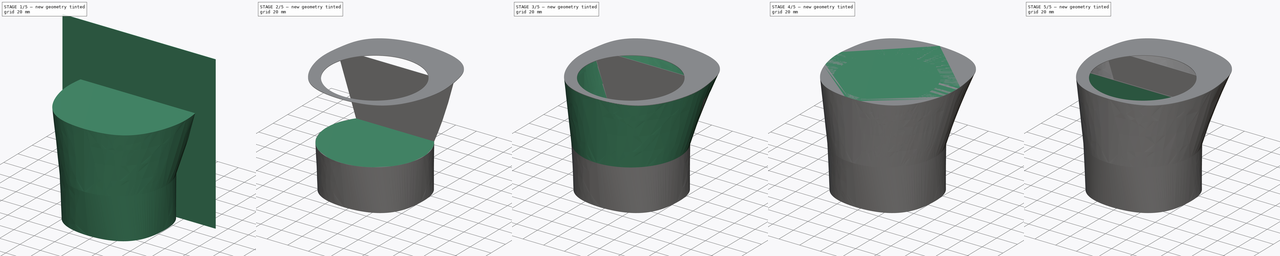
[diagram: build sequence overview — one tinted view per stage of 5, left to right]
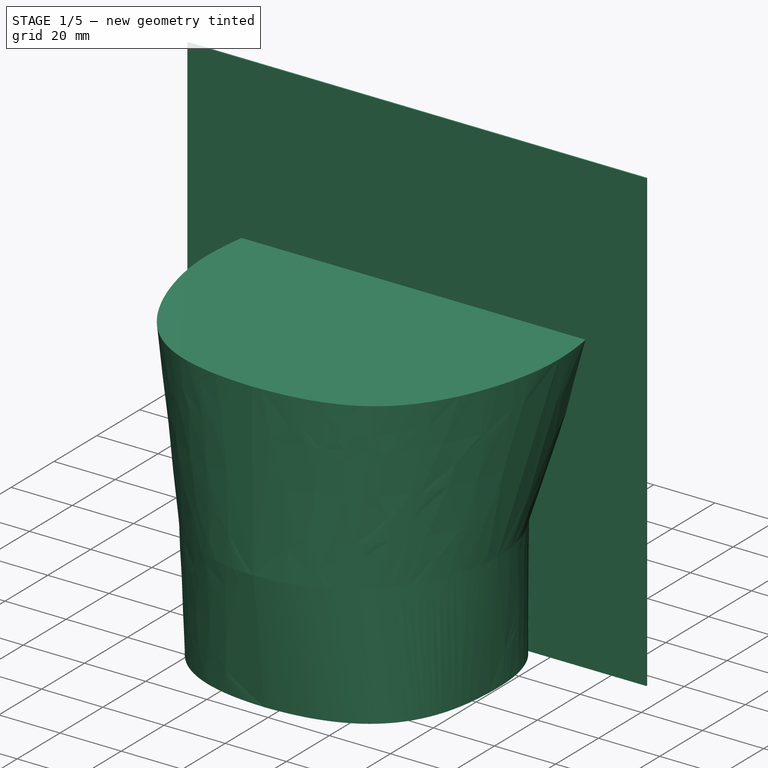
[diagram: stage 1 of 5 — iso view after this stage's code; geometry added in this stage tinted green]
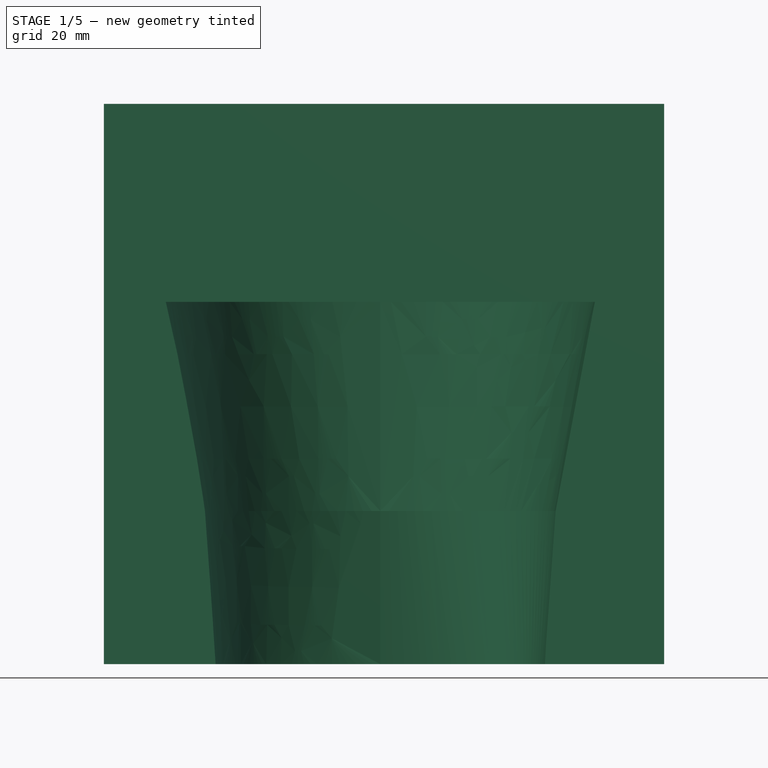
[diagram: stage 1 of 5 — front view after this stage's code; geometry added in this stage tinted green]
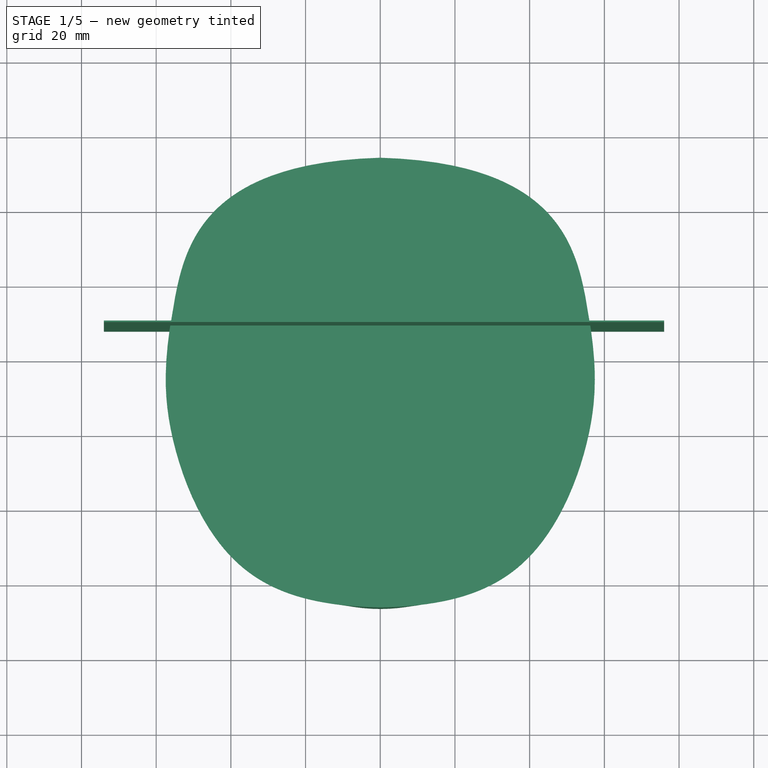
[diagram: stage 1 of 5 — top view after this stage's code; geometry added in this stage tinted green]
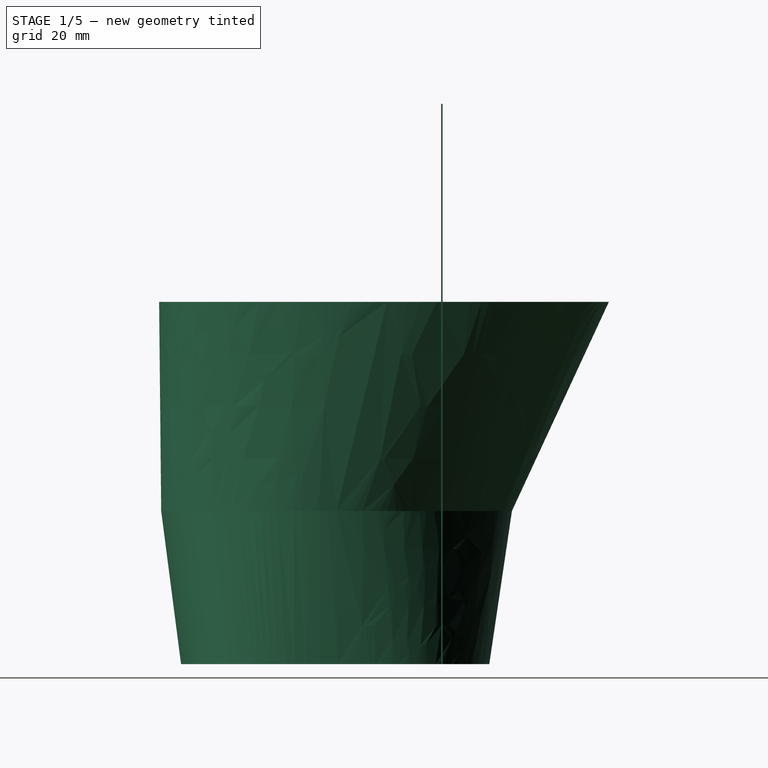
[diagram: stage 1 of 5 — right view after this stage's code; geometry added in this stage tinted green]
FCSTD DOCUMENT  (FreeCAD 0.21R33668 +26 (Git))
Label: nose_finished
License: All rights reserved
LicenseURL: http://en.wikipedia.org/wiki/All_rights_reserved
objects: Sketcher::SketchObject×14, PartDesign::AdditiveLoft×6, Part::MultiFuse×6, Image::ImagePlane×3, PartDesign::Body×3, PartDesign::Thickness×2, Part::Box×2, Part::MultiCommon×2, PartDesign::Pad×1, PartDesign::Pocket×1
note: 47 computed .brp shape members not serialized (recipe doc carries the construction recipe); baked Part::Feature solids carry a one-line shape summary decoded from their .brp

FEATURE [Sketcher::SketchObject] Sketch008
  FullyConstrained = false
  MapMode = 5
  Support = -> [XY_Plane003]
  sketch-geometry (10):
    g0-g4: Circle x5 (B-spline internal-alignment scaffolding for g5; pole/knot coordinates omitted)
    g5: BSplineCurve PolesCount=5 KnotsCount=3 Degree=3 IsPeriodic=0
    g6: GeomPoint X=0 Y=40.8923 Z=0
    g7: GeomPoint X=43.9691 Y=-0.234824 Z=0
    g8: GeomPoint X=0 Y=-41.641 Z=0
    g9: BSplineCurve PolesCount=5 KnotsCount=3 Degree=3 IsPeriodic=0
  constraints (12):
    c: Weight(g0) = 1
    c: PointOnObject(g5,g-2)
    c: Equal(g0,g1)
    c: Equal(g0,g2)
    c: PointOnObject(g2,g-1)
    c: Equal(g0,g3)
    c: Equal(g0,g4)
    c: PointOnObject(g5,g-2)
    c: InternalAlignment(g0-g4 -> g5) x5
    c: InternalAlignment(g6,g5)
    c: InternalAlignment(g7,g5)
    c: InternalAlignment(g8,g5)
FEATURE [Sketcher::SketchObject] Sketch009
  AttachmentOffset = pos=(0,0,41) rot=(0,0,1;0rad)
  FullyConstrained = false
  MapMode = 5
  Placement = pos=(0,0,41) rot=(0,0,1;0rad)
  Support = -> [XY_Plane003]
  sketch-geometry (1):
    g0: Circle CenterX=0 CenterY=0 CenterZ=0 NormalX=0 NormalY=0 NormalZ=1 AngleXU=0 Radius=46.9575
  constraints (1):
    c: Coincident(g0,g-1)
FEATURE [PartDesign::AdditiveLoft] AdditiveLoft003
  Closed = false
  Profile = -> Sketch009
  Ruled = false
  Sections = -> [Sketch008]
FEATURE [Sketcher::SketchObject] Sketch010
  AttachmentOffset = pos=(0,0,41) rot=(0,0,1;0rad)
  FullyConstrained = false
  MapMode = 5
  Placement = pos=(0,0,41) rot=(0,0,1;0rad)
  Support = -> [XY_Plane004]
  sketch-geometry (1):
    g0: Circle CenterX=0 CenterY=0 CenterZ=0 NormalX=0 NormalY=0 NormalZ=1 AngleXU=0 Radius=46.9575
  constraints (1):
    c: Coincident(g0,g-1)
FEATURE [Sketcher::SketchObject] Sketch011
  AttachmentOffset = pos=(0,0,97) rot=(0,0,1;0rad)
  FullyConstrained = false
  MapMode = 5
  Placement = pos=(0,0,97) rot=(0,0,1;0rad)
  Support = -> [XY_Plane004]
  sketch-geometry (14):
    g0-g6: Circle x7 (B-spline internal-alignment scaffolding for g7; pole/knot coordinates omitted)
    g7: BSplineCurve PolesCount=7 KnotsCount=5 Degree=3 IsPeriodic=0
    g8-g12: GeomPoint x5 (B-spline internal-alignment scaffolding for g7; pole/knot coordinates omitted)
    g13: BSplineCurve PolesCount=7 KnotsCount=5 Degree=3 IsPeriodic=0
  constraints (12):
    c: Weight(g0) = 1
    c: PointOnObject(g7,g-2)
    c: Equal(g0,g1)
    c: Equal(g0,g2)
    c: Equal(g0,g3)
    c: PointOnObject(g3,g-1)
    c: Equal(g0,g4)
    c: Equal(g0,g5)
    c: Equal(g0,g6)
    c: PointOnObject(g7,g-2)
    c: InternalAlignment(g0-g6 -> g7) x7
    c: InternalAlignment(g8-g12 -> g7) x5
FEATURE [PartDesign::AdditiveLoft] AdditiveLoft002
  Closed = false
  Profile = -> Sketch011
  Ruled = false
  Sections = -> [Sketch010]
FEATURE [Part::MultiFuse] Fusion002
  Shapes = -> [AdditiveLoft002,AdditiveLoft003]
FEATURE [Part::Box] Box  label="Cube"
  AttacherType = Attacher::AttachEngine3D
  Height = 150
  Length = 150
  Placement = pos=(-74,28,0) rot=(0,0,1;0rad)
  Width = 0.4
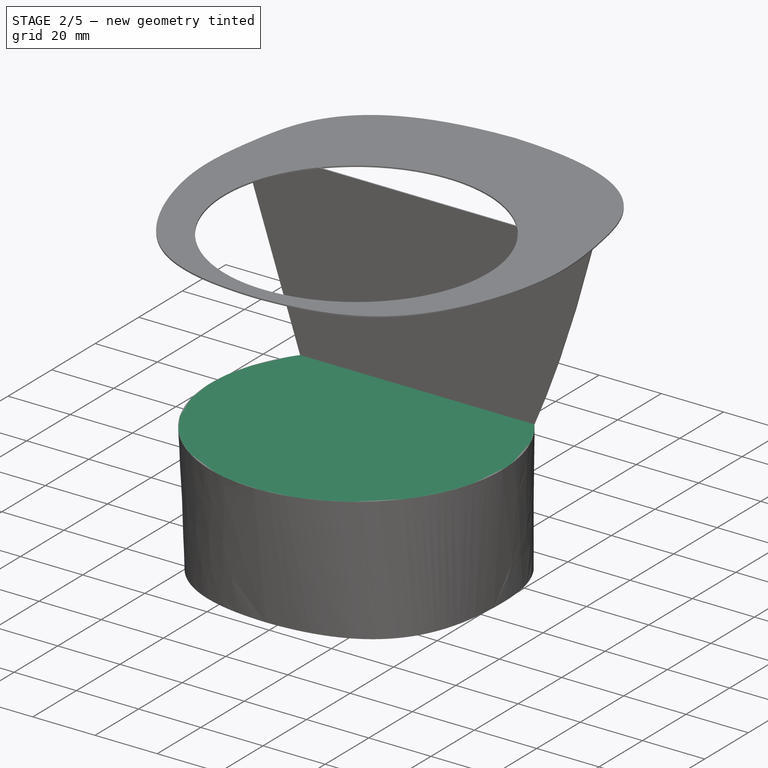
[diagram: stage 2 of 5 — iso view after this stage's code; geometry added in this stage tinted green]
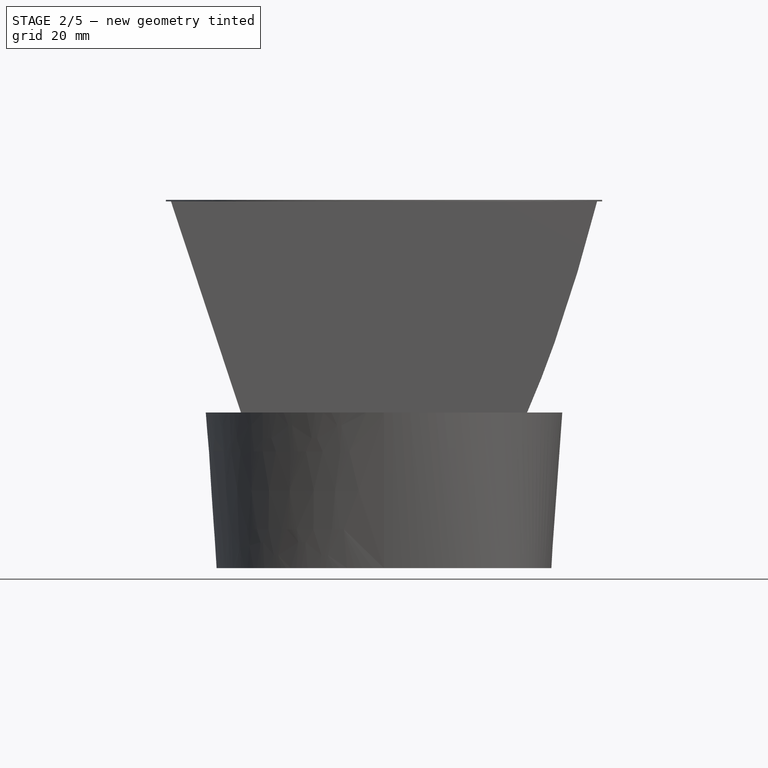
[diagram: stage 2 of 5 — front view after this stage's code; geometry added in this stage tinted green]
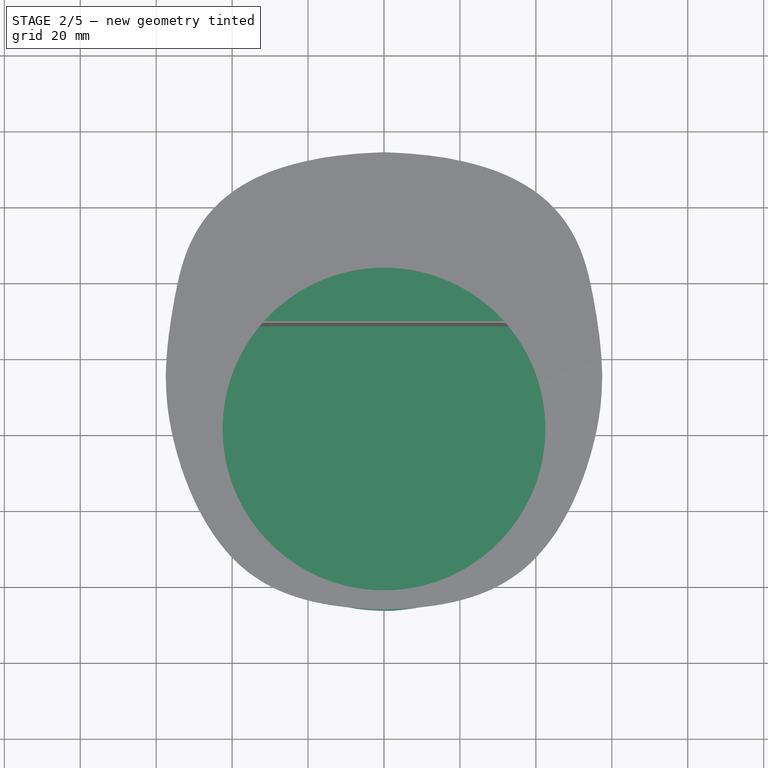
[diagram: stage 2 of 5 — top view after this stage's code; geometry added in this stage tinted green]
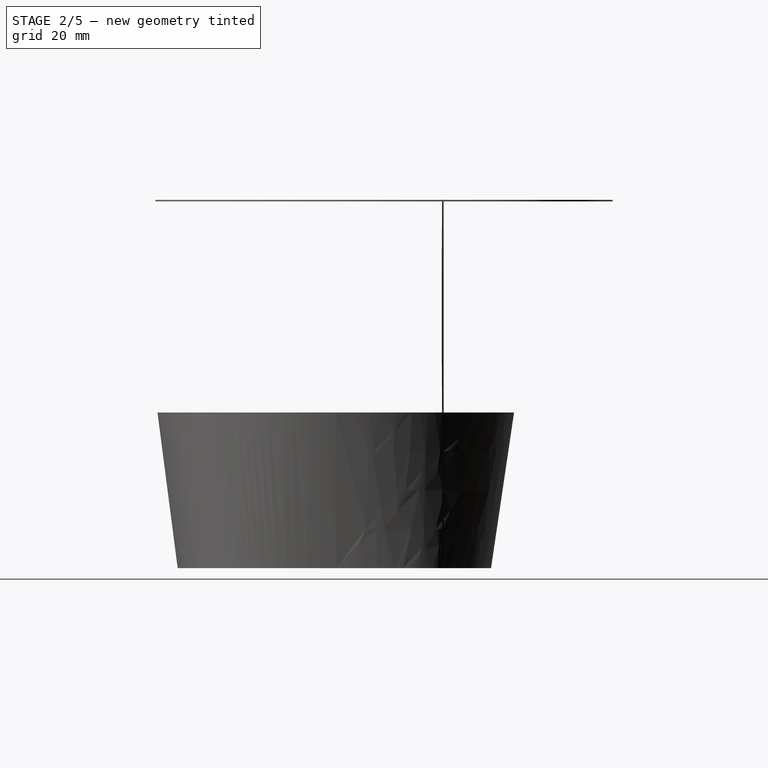
[diagram: stage 2 of 5 — right view after this stage's code; geometry added in this stage tinted green]
FEATURE [PartDesign::Body] Body001
  Group = -> [Sketch004,Sketch005,AdditiveLoft,Thickness]
  Origin = -> Origin001
  Placement = pos=(0,0,-0.18) rot=(0,0,1;0rad)
  Tip = -> Thickness
FEATURE [PartDesign::AdditiveLoft] AdditiveLoft001
  Closed = false
  Profile = -> Sketch001
  Ruled = false
  Sections = -> [Sketch]
FEATURE [Sketcher::SketchObject] Sketch006
  AttachmentOffset = pos=(0,0,97) rot=(0,0,1;0rad)
  FullyConstrained = false
  MapMode = 5
  Placement = pos=(0,0,97) rot=(0,0,1;0rad)
  Support = -> [XY_Plane002]
  sketch-geometry (14):
    g0-g6: Circle x7 (B-spline internal-alignment scaffolding for g7; pole/knot coordinates omitted)
    g7: BSplineCurve PolesCount=7 KnotsCount=5 Degree=3 IsPeriodic=0
    g8-g12: GeomPoint x5 (B-spline internal-alignment scaffolding for g7; pole/knot coordinates omitted)
    g13: BSplineCurve PolesCount=7 KnotsCount=5 Degree=3 IsPeriodic=0
  constraints (12):
    c: Weight(g0) = 1
    c: PointOnObject(g7,g-2)
    c: Equal(g0,g1)
    c: Equal(g0,g2)
    c: Equal(g0,g3)
    c: PointOnObject(g3,g-1)
    c: Equal(g0,g4)
    c: Equal(g0,g5)
    c: Equal(g0,g6)
    c: PointOnObject(g7,g-2)
    c: InternalAlignment(g0-g6 -> g7) x7
    c: InternalAlignment(g8-g12 -> g7) x5
FEATURE [PartDesign::Pad] Pad
  Direction = (0,0,1)
  Length = 0.4
  Length2 = 10
  Profile = -> Sketch006
  ReferenceAxis = -> Sketch006 [N_Axis]
  Reversed = true
  Type = 0
FEATURE [Sketcher::SketchObject] Sketch007
  FullyConstrained = true
  MapMode = 5
  Placement = pos=(0,0,97) rot=(0,0,1;0rad)
  Support = -> [Pad]
  sketch-geometry (1):
    g0: Circle CenterX=0 CenterY=0 CenterZ=0 NormalX=0 NormalY=0 NormalZ=1 AngleXU=0 Radius=42.5
  constraints (2):
    c: Coincident(g0,g-1)
    c: Diameter(g0) = 85
FEATURE [PartDesign::Pocket] Pocket
  BaseFeature = -> Pad
  Direction = (0,0,-1)
  Length = 5
  Length2 = 5
  Profile = -> Sketch007
  ReferenceAxis = -> Sketch007 [N_Axis]
  Type = 0
FEATURE [Part::MultiCommon] Common
  Shapes = -> [Fusion002,Box]
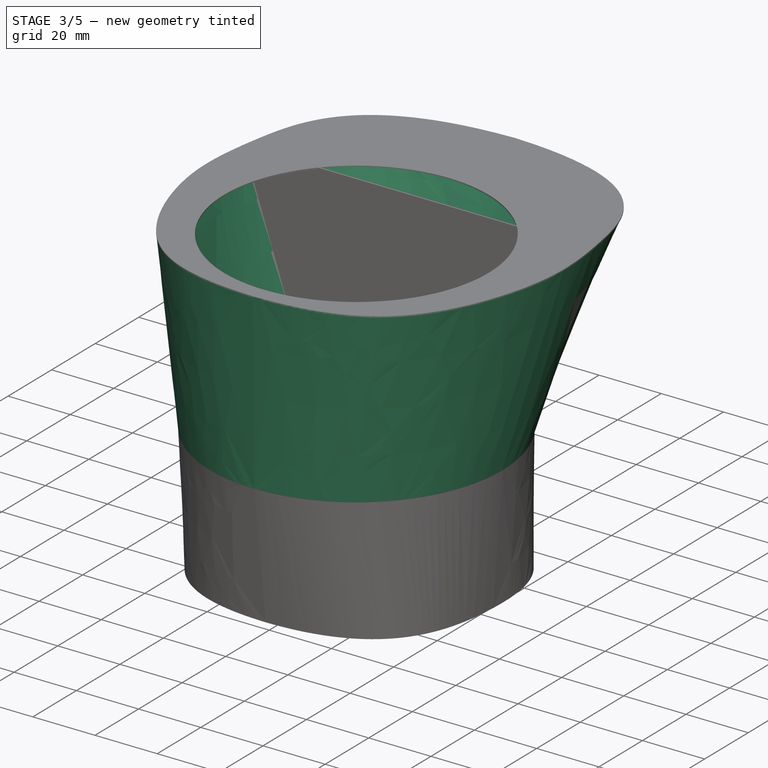
[diagram: stage 3 of 5 — iso view after this stage's code; geometry added in this stage tinted green]
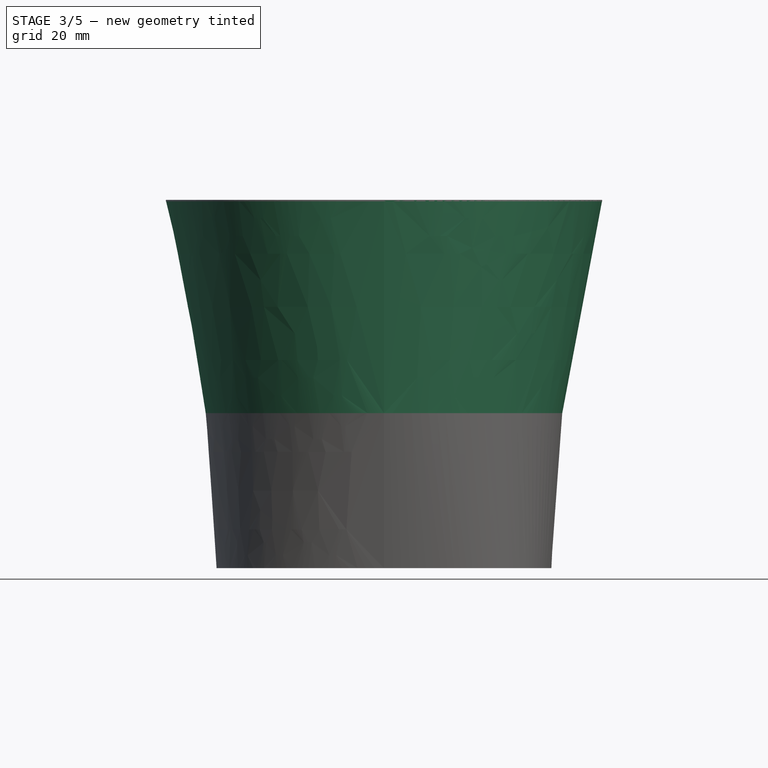
[diagram: stage 3 of 5 — front view after this stage's code; geometry added in this stage tinted green]
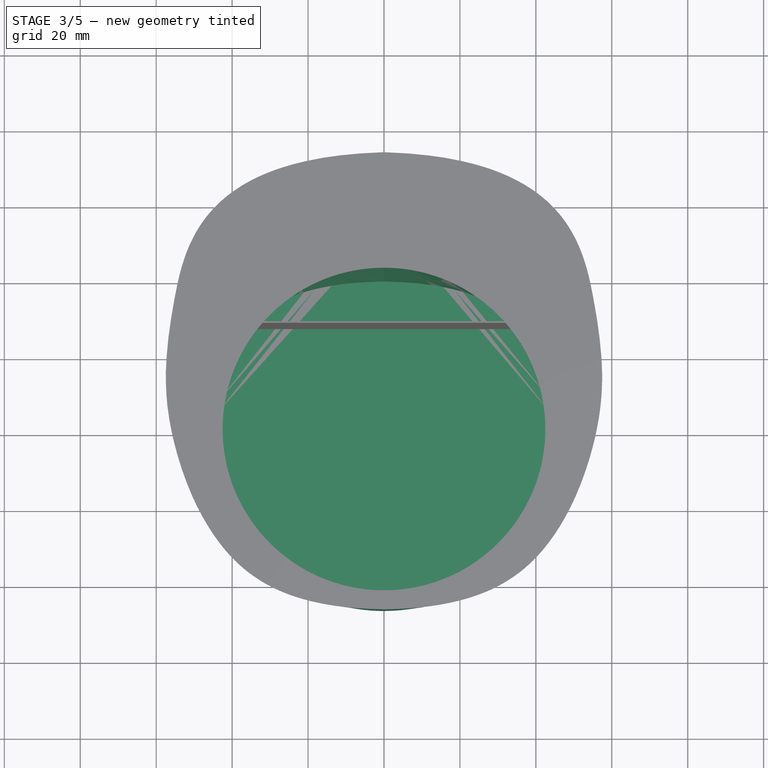
[diagram: stage 3 of 5 — top view after this stage's code; geometry added in this stage tinted green]
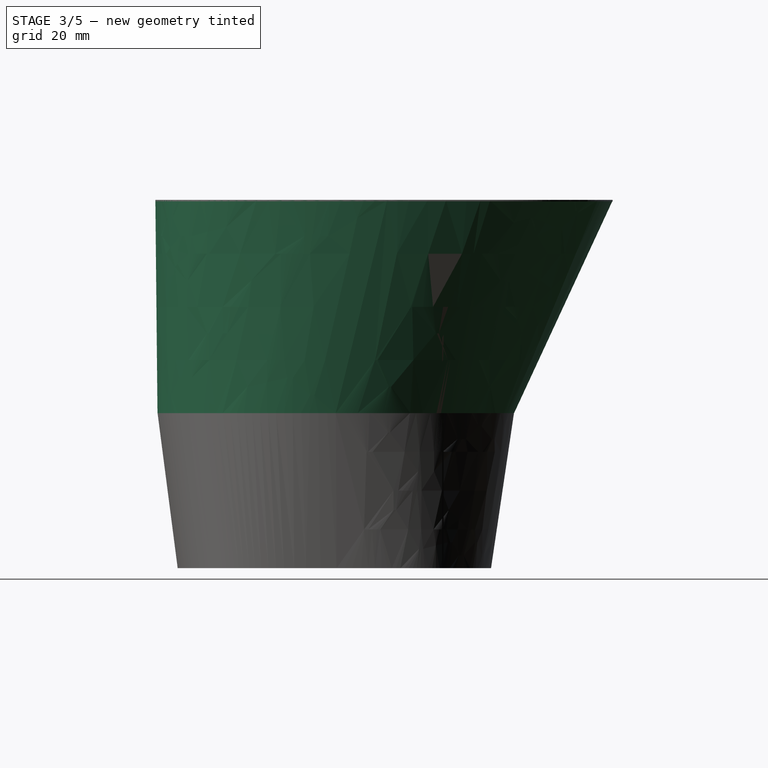
[diagram: stage 3 of 5 — right view after this stage's code; geometry added in this stage tinted green]
FEATURE [Image::ImagePlane] first
  Placement = pos=(7,-6,0) rot=(0,0,1;0rad)
  XSize = 216.67
  YSize = 171.39
FEATURE [Image::ImagePlane] second
  Placement = pos=(2,-13,0) rot=(0,0,1;0rad)
  XSize = 265.847
  YSize = 200.768
FEATURE [Image::ImagePlane] third
  Placement = pos=(-10,-8,0) rot=(0,0,1;0rad)
  XSize = 267.613
  YSize = 218.51
FEATURE [Sketcher::SketchObject] Sketch
  FullyConstrained = false
  MapMode = 5
  Support = -> [XY_Plane]
  sketch-geometry (10):
    g0-g4: Circle x5 (B-spline internal-alignment scaffolding for g5; pole/knot coordinates omitted)
    g5: BSplineCurve PolesCount=5 KnotsCount=3 Degree=3 IsPeriodic=0
    g6: GeomPoint X=0 Y=40.8923 Z=0
    g7: GeomPoint X=43.9691 Y=-0.234824 Z=0
    g8: GeomPoint X=0 Y=-41.641 Z=0
    g9: BSplineCurve PolesCount=5 KnotsCount=3 Degree=3 IsPeriodic=0
  constraints (12):
    c: Weight(g0) = 1
    c: PointOnObject(g5,g-2)
    c: Equal(g0,g1)
    c: Equal(g0,g2)
    c: PointOnObject(g2,g-1)
    c: Equal(g0,g3)
    c: Equal(g0,g4)
    c: PointOnObject(g5,g-2)
    c: InternalAlignment(g0-g4 -> g5) x5
    c: InternalAlignment(g6,g5)
    c: InternalAlignment(g7,g5)
    c: InternalAlignment(g8,g5)
FEATURE [Sketcher::SketchObject] Sketch001
  AttachmentOffset = pos=(0,0,41) rot=(0,0,1;0rad)
  FullyConstrained = false
  MapMode = 5
  Placement = pos=(0,0,41) rot=(0,0,1;0rad)
  Support = -> [XY_Plane]
  sketch-geometry (1):
    g0: Circle CenterX=0 CenterY=0 CenterZ=0 NormalX=0 NormalY=0 NormalZ=1 AngleXU=0 Radius=46.9575
  constraints (1):
    c: Coincident(g0,g-1)
FEATURE [Sketcher::SketchObject] Sketch004
  AttachmentOffset = pos=(0,0,41) rot=(0,0,1;0rad)
  FullyConstrained = false
  MapMode = 5
  Placement = pos=(0,0,41) rot=(0,0,1;0rad)
  Support = -> [XY_Plane001]
  sketch-geometry (1):
    g0: Circle CenterX=0 CenterY=0 CenterZ=0 NormalX=0 NormalY=0 NormalZ=1 AngleXU=0 Radius=46.9575
  constraints (1):
    c: Coincident(g0,g-1)
FEATURE [Sketcher::SketchObject] Sketch005
  AttachmentOffset = pos=(0,0,97) rot=(0,0,1;0rad)
  FullyConstrained = false
  MapMode = 5
  Placement = pos=(0,0,97) rot=(0,0,1;0rad)
  Support = -> [XY_Plane001]
  sketch-geometry (14):
    g0-g6: Circle x7 (B-spline internal-alignment scaffolding for g7; pole/knot coordinates omitted)
    g7: BSplineCurve PolesCount=7 KnotsCount=5 Degree=3 IsPeriodic=0
    g8-g12: GeomPoint x5 (B-spline internal-alignment scaffolding for g7; pole/knot coordinates omitted)
    g13: BSplineCurve PolesCount=7 KnotsCount=5 Degree=3 IsPeriodic=0
  constraints (12):
    c: Weight(g0) = 1
    c: PointOnObject(g7,g-2)
    c: Equal(g0,g1)
    c: Equal(g0,g2)
    c: Equal(g0,g3)
    c: PointOnObject(g3,g-1)
    c: Equal(g0,g4)
    c: Equal(g0,g5)
    c: Equal(g0,g6)
    c: PointOnObject(g7,g-2)
    c: InternalAlignment(g0-g6 -> g7) x7
    c: InternalAlignment(g8-g12 -> g7) x5
FEATURE [PartDesign::AdditiveLoft] AdditiveLoft
  Closed = false
  Profile = -> Sketch005
  Ruled = false
  Sections = -> [Sketch004]
FEATURE [PartDesign::Thickness] Thickness
  Base = -> AdditiveLoft [Face1,Face3]
  BaseFeature = -> AdditiveLoft
  Intersection = false
  Join = 0
  Mode = 0
  Reversed = true
  SupportTransform = false
  Value = 0.4
FEATURE [PartDesign::Thickness] Thickness001
  Base = -> AdditiveLoft001 [Face1]
  BaseFeature = -> AdditiveLoft001
  Intersection = false
  Join = 1
  Mode = 0
  Reversed = true
  SupportTransform = false
  Value = 0.4
FEATURE [PartDesign::Body] Body
  Group = -> [Sketch,Sketch001,AdditiveLoft001,Thickness001]
  Origin = -> Origin
  Tip = -> Thickness001
FEATURE [Part::MultiFuse] Fusion
  Shapes = -> [Body001,Body]
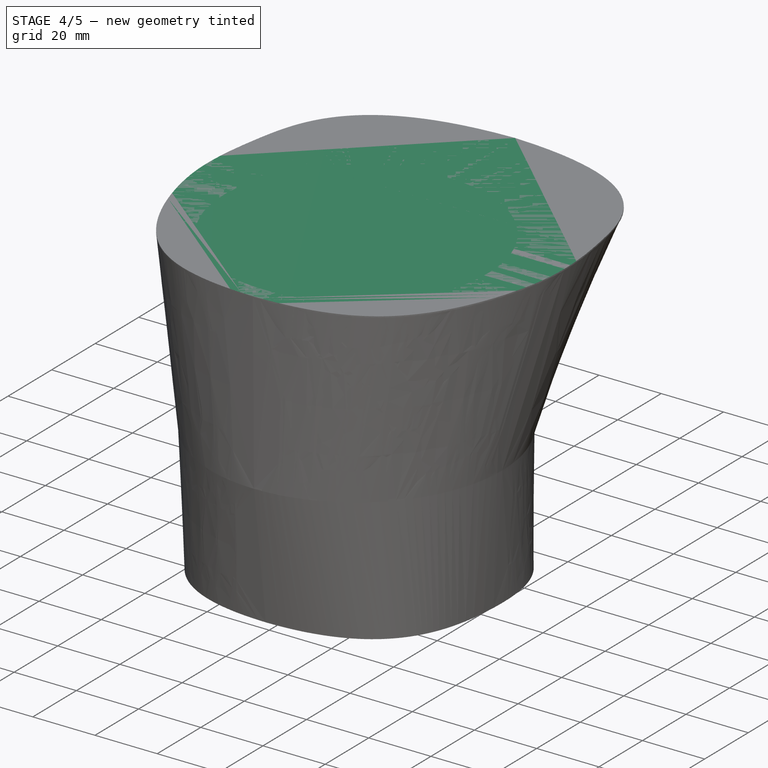
[diagram: stage 4 of 5 — iso view after this stage's code; geometry added in this stage tinted green]
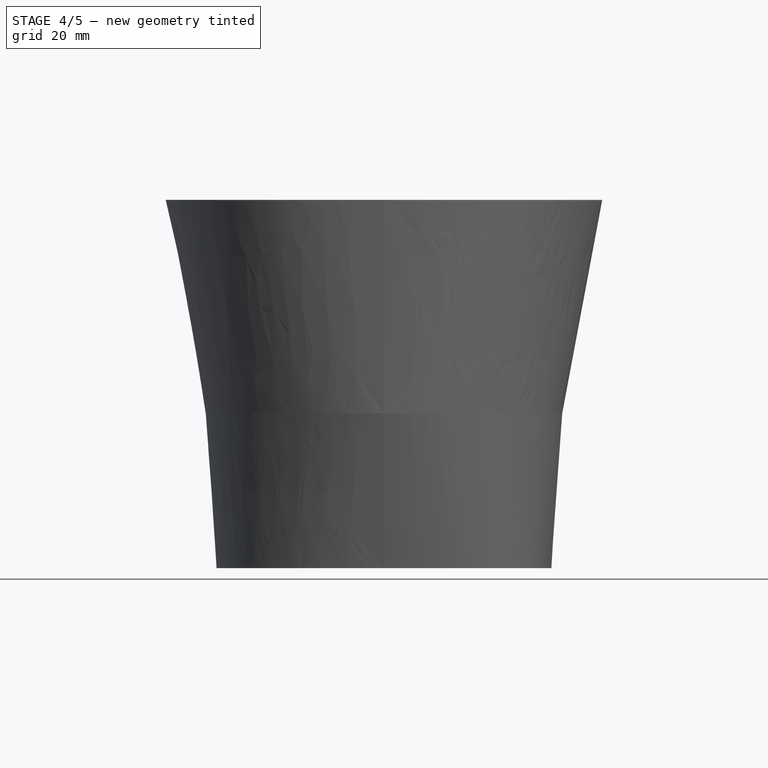
[diagram: stage 4 of 5 — front view after this stage's code; geometry added in this stage tinted green]
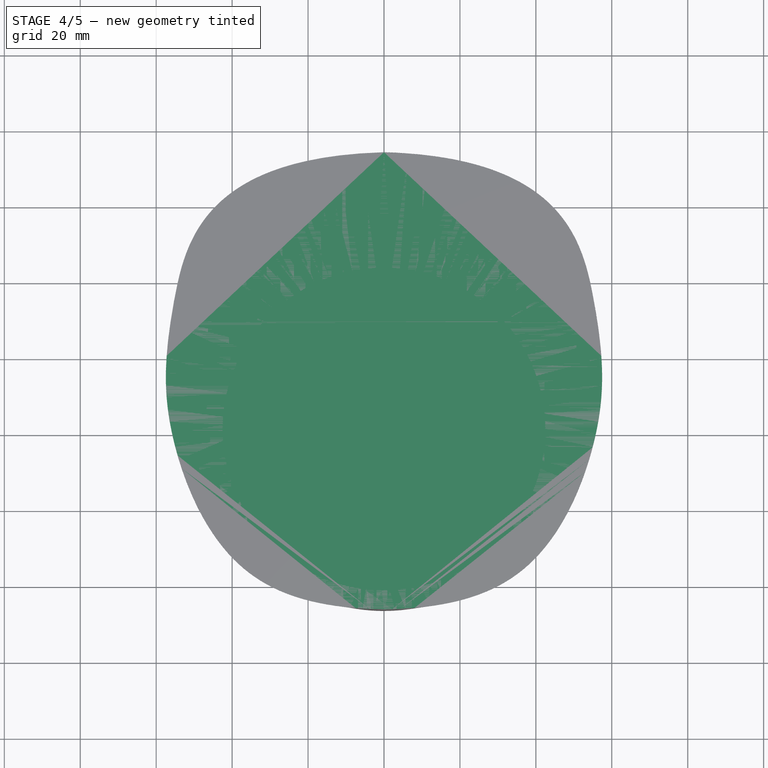
[diagram: stage 4 of 5 — top view after this stage's code; geometry added in this stage tinted green]
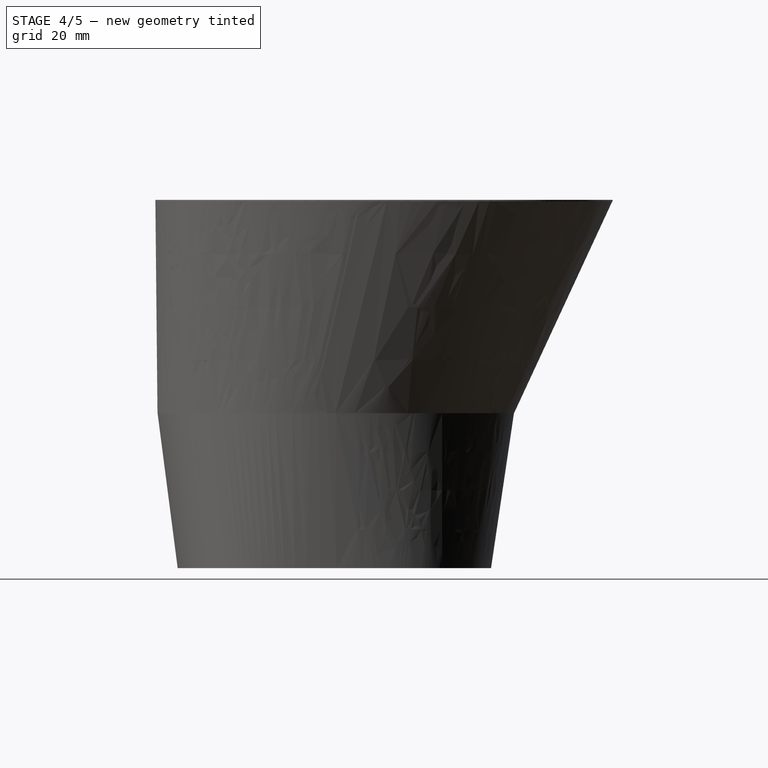
[diagram: stage 4 of 5 — right view after this stage's code; geometry added in this stage tinted green]
FEATURE [PartDesign::Body] Body002
  Group = -> [Sketch006,Pad,Sketch007,Pocket]
  Origin = -> Origin002
  Tip = -> Pocket
FEATURE [Part::MultiFuse] Fusion001
  Shapes = -> [Fusion,Body002]
FEATURE [Sketcher::SketchObject] Sketch012
  FullyConstrained = false
  MapMode = 5
  Support = -> [XY_Plane005]
  sketch-geometry (10):
    g0-g4: Circle x5 (B-spline internal-alignment scaffolding for g5; pole/knot coordinates omitted)
    g5: BSplineCurve PolesCount=5 KnotsCount=3 Degree=3 IsPeriodic=0
    g6: GeomPoint X=0 Y=40.8923 Z=0
    g7: GeomPoint X=43.9691 Y=-0.234824 Z=0
    g8: GeomPoint X=0 Y=-41.641 Z=0
    g9: BSplineCurve PolesCount=5 KnotsCount=3 Degree=3 IsPeriodic=0
  constraints (12):
    c: Weight(g0) = 1
    c: PointOnObject(g5,g-2)
    c: Equal(g0,g1)
    c: Equal(g0,g2)
    c: PointOnObject(g2,g-1)
    c: Equal(g0,g3)
    c: Equal(g0,g4)
    c: PointOnObject(g5,g-2)
    c: InternalAlignment(g0-g4 -> g5) x5
    c: InternalAlignment(g6,g5)
    c: InternalAlignment(g7,g5)
    c: InternalAlignment(g8,g5)
FEATURE [Sketcher::SketchObject] Sketch013
  AttachmentOffset = pos=(0,0,41) rot=(0,0,1;0rad)
  FullyConstrained = false
  MapMode = 5
  Placement = pos=(0,0,41) rot=(0,0,1;0rad)
  Support = -> [XY_Plane005]
  sketch-geometry (1):
    g0: Circle CenterX=0 CenterY=0 CenterZ=0 NormalX=0 NormalY=0 NormalZ=1 AngleXU=0 Radius=46.9575
  constraints (1):
    c: Coincident(g0,g-1)
FEATURE [PartDesign::AdditiveLoft] AdditiveLoft005
  Closed = false
  Profile = -> Sketch013
  Ruled = false
  Sections = -> [Sketch012]
FEATURE [Sketcher::SketchObject] Sketch014
  AttachmentOffset = pos=(0,0,41) rot=(0,0,1;0rad)
  FullyConstrained = false
  MapMode = 5
  Placement = pos=(0,0,41) rot=(0,0,1;0rad)
  Support = -> [XY_Plane006]
  sketch-geometry (1):
    g0: Circle CenterX=0 CenterY=0 CenterZ=0 NormalX=0 NormalY=0 NormalZ=1 AngleXU=0 Radius=46.9575
  constraints (1):
    c: Coincident(g0,g-1)
FEATURE [Sketcher::SketchObject] Sketch015
  AttachmentOffset = pos=(0,0,97) rot=(0,0,1;0rad)
  FullyConstrained = false
  MapMode = 5
  Placement = pos=(0,0,97) rot=(0,0,1;0rad)
  Support = -> [XY_Plane006]
  sketch-geometry (14):
    g0-g6: Circle x7 (B-spline internal-alignment scaffolding for g7; pole/knot coordinates omitted)
    g7: BSplineCurve PolesCount=7 KnotsCount=5 Degree=3 IsPeriodic=0
    g8-g12: GeomPoint x5 (B-spline internal-alignment scaffolding for g7; pole/knot coordinates omitted)
    g13: BSplineCurve PolesCount=7 KnotsCount=5 Degree=3 IsPeriodic=0
  constraints (12):
    c: Weight(g0) = 1
    c: PointOnObject(g7,g-2)
    c: Equal(g0,g1)
    c: Equal(g0,g2)
    c: Equal(g0,g3)
    c: PointOnObject(g3,g-1)
    c: Equal(g0,g4)
    c: Equal(g0,g5)
    c: Equal(g0,g6)
    c: PointOnObject(g7,g-2)
    c: InternalAlignment(g0-g6 -> g7) x7
    c: InternalAlignment(g8-g12 -> g7) x5
FEATURE [PartDesign::AdditiveLoft] AdditiveLoft004
  Closed = false
  Profile = -> Sketch015
  Ruled = false
  Sections = -> [Sketch014]
FEATURE [Part::MultiFuse] Fusion004
  Shapes = -> [Common,Fusion001]
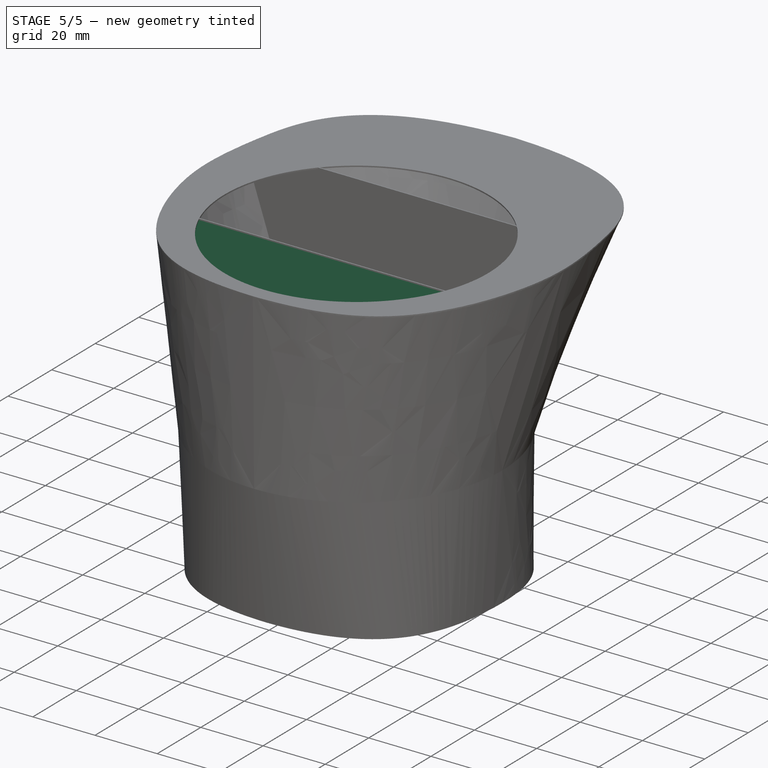
[diagram: stage 5 of 5 — iso view after this stage's code; geometry added in this stage tinted green]
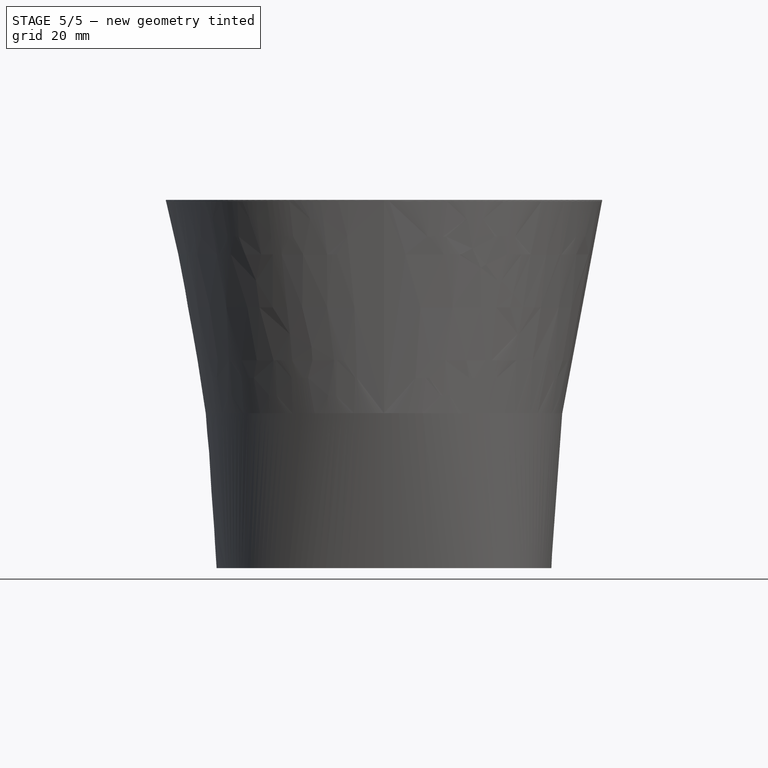
[diagram: stage 5 of 5 — front view after this stage's code; geometry added in this stage tinted green]
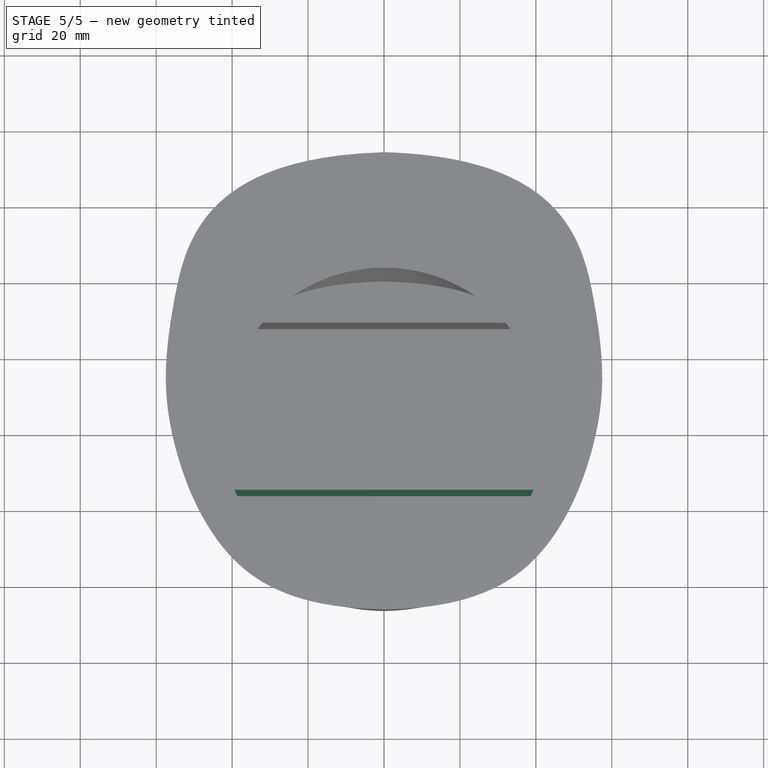
[diagram: stage 5 of 5 — top view after this stage's code; geometry added in this stage tinted green]
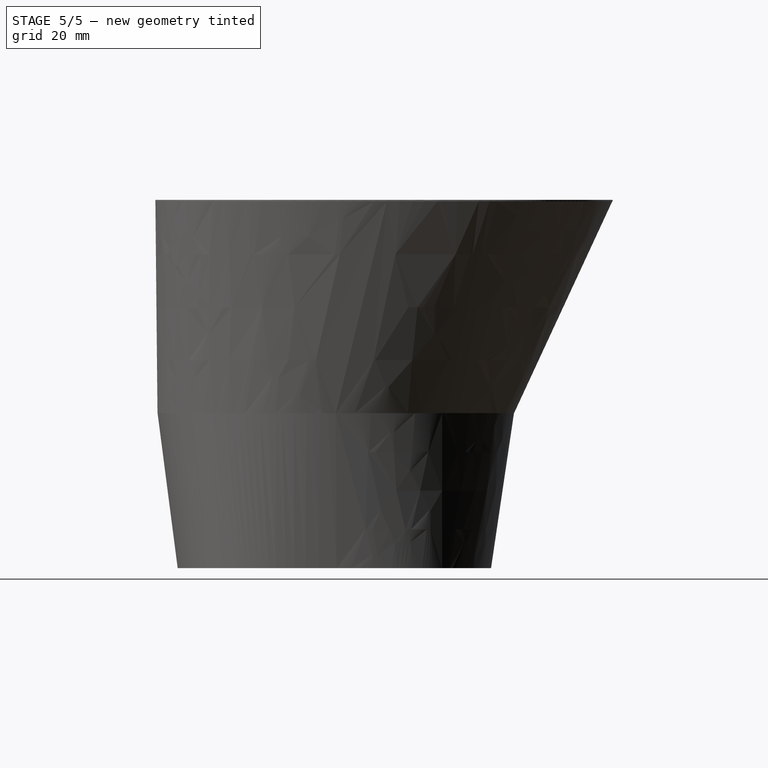
[diagram: stage 5 of 5 — right view after this stage's code; geometry added in this stage tinted green]
FEATURE [Part::Box] Box001  label="Cube001"
  AttacherType = Attacher::AttachEngine3D
  Height = 150
  Length = 150
  Placement = pos=(-74,-16,0) rot=(0,0,1;0rad)
  Width = 0.4
FEATURE [Part::MultiFuse] Fusion003
  Shapes = -> [AdditiveLoft004,AdditiveLoft005]
FEATURE [Part::MultiCommon] Common001
  Shapes = -> [Fusion003,Box001]
FEATURE [Part::MultiFuse] Fusion005
  Shapes = -> [Common001,Fusion004]
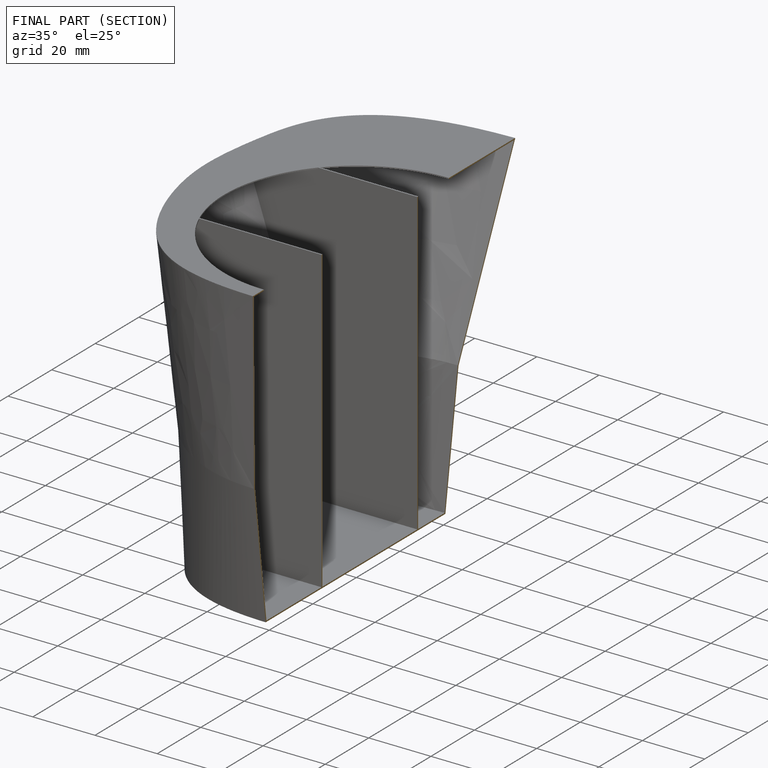
[diagram: finished part — half-section view (interior)]
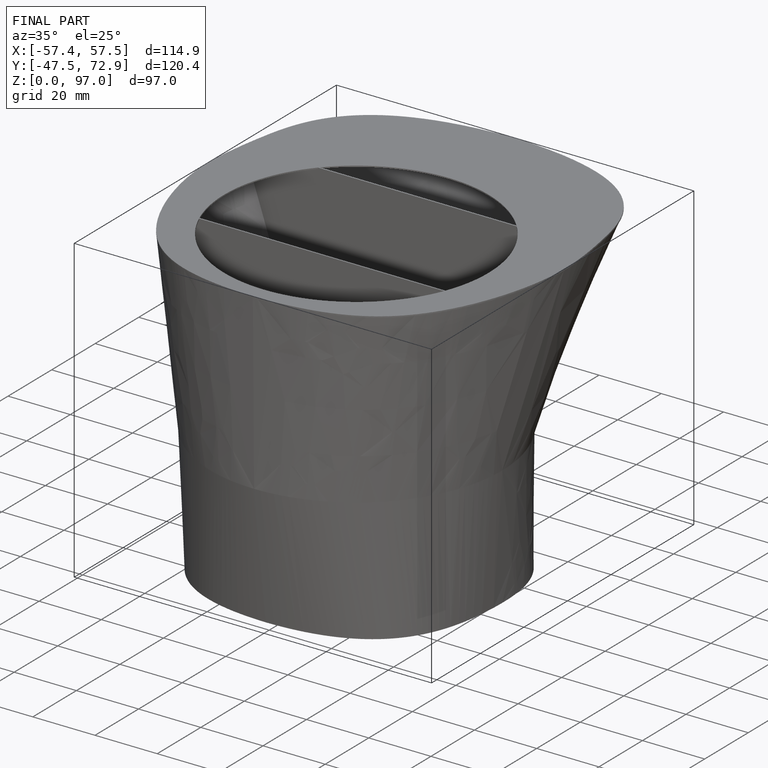
[diagram: finished part — iso view with bounding-box wireframe]
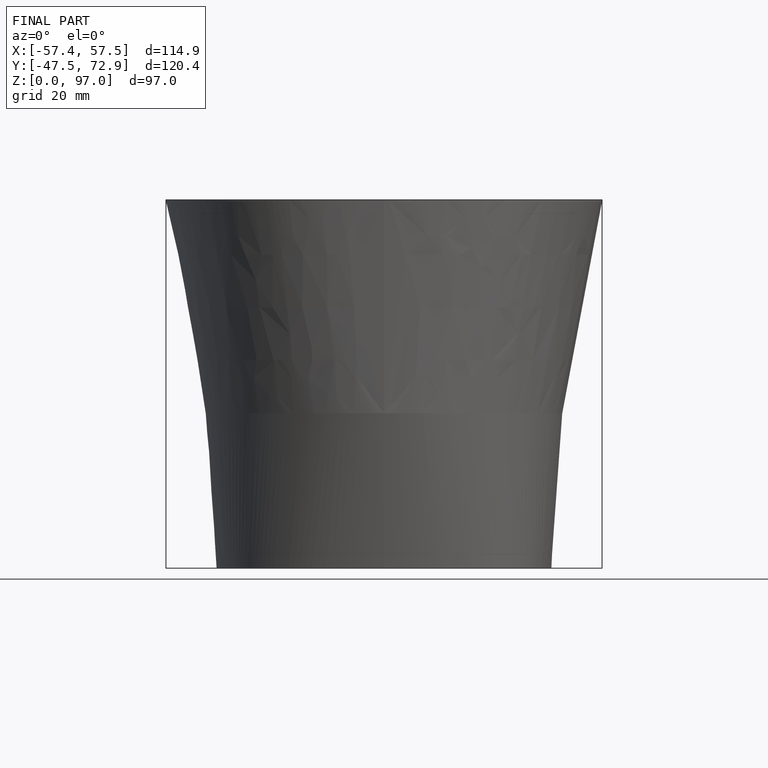
[diagram: finished part — front view with bounding-box wireframe]
